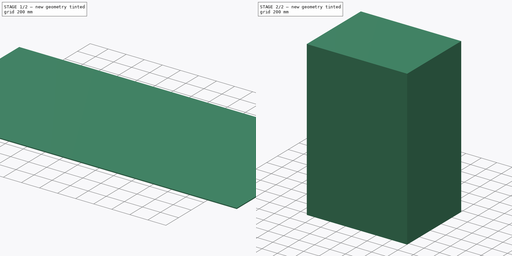
[diagram: build sequence overview — one tinted view per stage of 2, left to right]
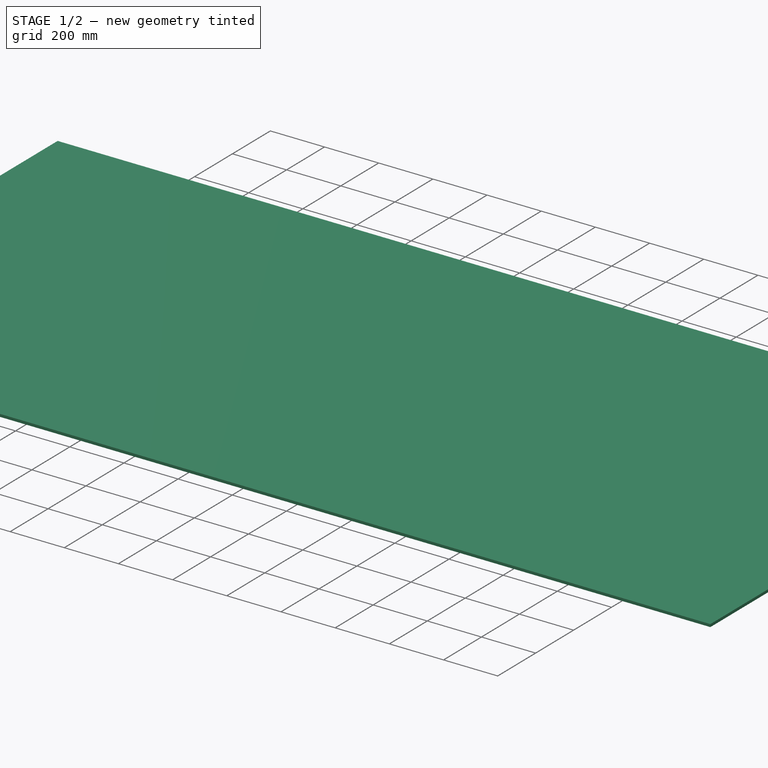
[diagram: stage 1 of 2 — iso view after this stage's code; geometry added in this stage tinted green]
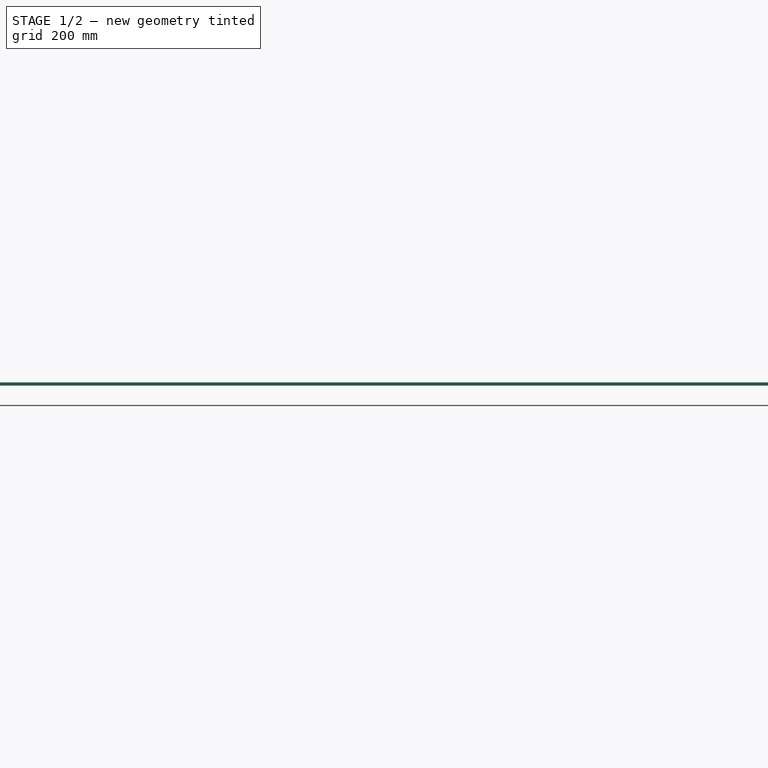
[diagram: stage 1 of 2 — front view after this stage's code; geometry added in this stage tinted green]
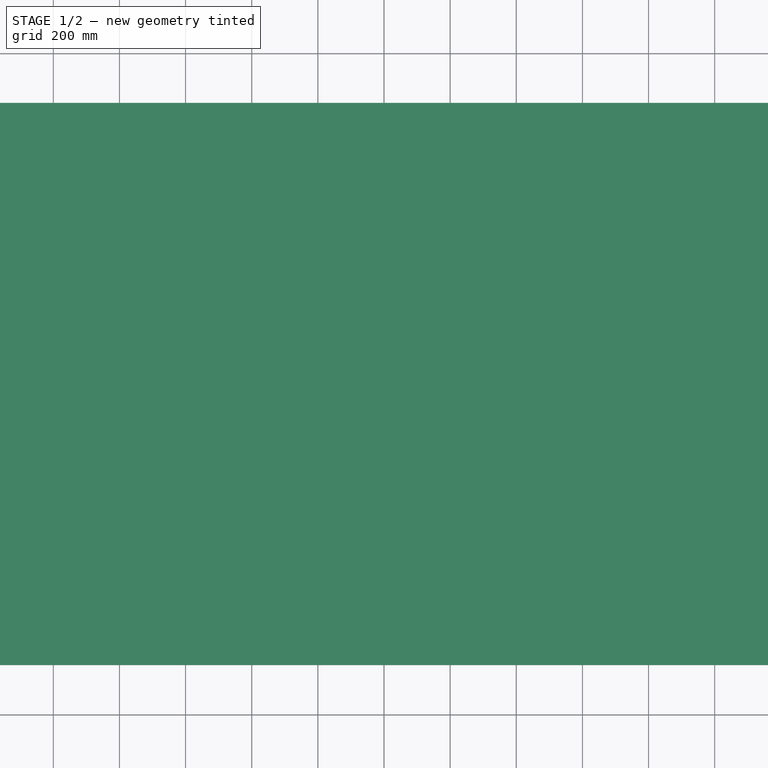
[diagram: stage 1 of 2 — top view after this stage's code; geometry added in this stage tinted green]
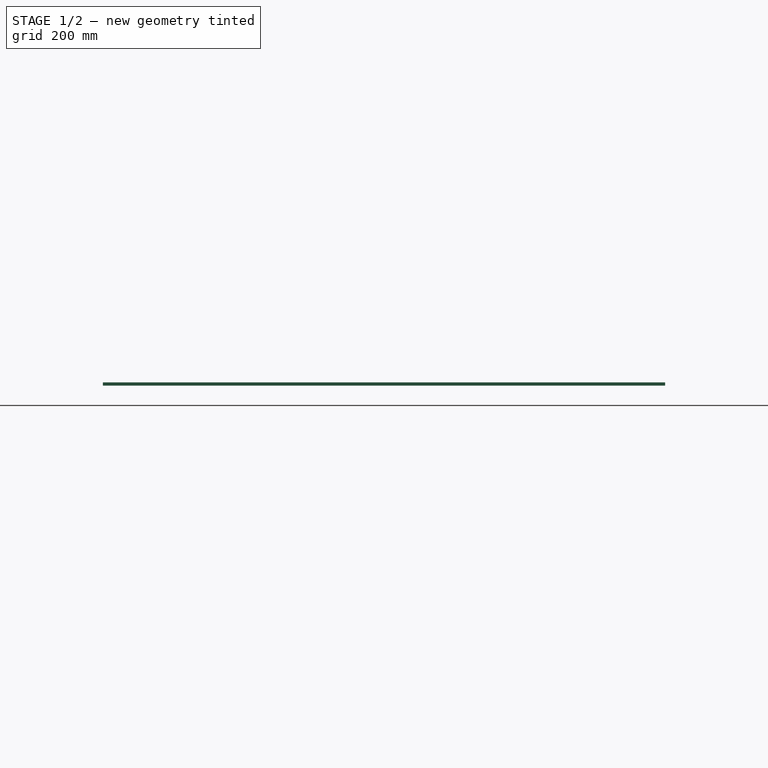
[diagram: stage 1 of 2 — right view after this stage's code; geometry added in this stage tinted green]
FCSTD DOCUMENT  (FreeCAD 0.20R29410 (Git))
Label: FireWhirl_Design1
License: All rights reserved
LicenseURL: http://en.wikipedia.org/wiki/All_rights_reserved
objects: Sketcher::SketchObject×3, Part::Extrusion×3, App::Part×1
note: 6 computed .brp shape members not serialized (recipe doc carries the construction recipe); baked Part::Feature solids carry a one-line shape summary decoded from their .brp

FEATURE [App::Part] Part
  Origin = -> Origin
FEATURE [Sketcher::SketchObject] Sketch
  FullyConstrained = true
  sketch-geometry (7):
    g0: LineSegment StartX=-948.243 StartY=-318.528 StartZ=0 EndX=931.142 EndY=365.512 EndZ=0
    g1: LineSegment StartX=931.142 StartY=365.512 StartZ=0 EndX=948.243 EndY=318.528 EndZ=0
    g2: LineSegment StartX=948.243 StartY=318.528 StartZ=0 EndX=-931.142 EndY=-365.512 EndZ=0
    g3: LineSegment StartX=-931.142 StartY=-365.512 StartZ=0 EndX=-948.243 EndY=-318.528 EndZ=0
    g4: LineSegment StartX=931.142 StartY=365.512 StartZ=0 EndX=-931.142 EndY=-365.512 EndZ=0
    g5: LineSegment StartX=-948.243 StartY=-318.528 StartZ=0 EndX=948.243 EndY=318.528 EndZ=0
    g6: GeomPoint X=0 Y=0 Z=0
  constraints (17):
    c: Coincident(g1,g0)
    c: Coincident(g2,g1)
    c: Coincident(g3,g2)
    c: Coincident(g3,g0)
    c: Parallel(g3,g1)
    c: Parallel(g0,g2)
    c: Angle(g2,g3) = 1.5708
    c: Coincident(g4,g0)
    c: Coincident(g4,g2)
    c: Coincident(g5,g0)
    c: Coincident(g5,g1)
    c: PointOnObject(g6,g4)
    c: PointOnObject(g6,g5)
    c: Coincident(g-1,g6)
    c: Angle(g-1,g0) = 0.349066
    c: Distance(g1) = 50
    c: Distance(g2) = 2000
FEATURE [Part::Extrusion] Extrude
  Base = -> Sketch
  Dir = (0,0,1)
  DirMode = 2
  FaceMakerClass = Part::FaceMakerBullseye
  LengthFwd = 50
  LengthRev = 0
  Solid = true
  Symmetric = false
FEATURE [Sketcher::SketchObject] Sketch001
  FullyConstrained = true
  MapMode = 5
  Placement = pos=(0,0,0) rot=(1,0,0;3.14159rad)
  Support = -> [Extrude]
  sketch-geometry (5):
    g0: LineSegment StartX=1800 StartY=850 StartZ=0 EndX=1800 EndY=-850 EndZ=0
    g1: LineSegment StartX=1800 StartY=-850 StartZ=0 EndX=-1800 EndY=-850 EndZ=0
    g2: LineSegment StartX=-1800 StartY=-850 StartZ=0 EndX=-1800 EndY=850 EndZ=0
    g3: LineSegment StartX=-1800 StartY=850 StartZ=0 EndX=1800 EndY=850 EndZ=0
    g4: GeomPoint X=0 Y=0 Z=0
  constraints (12):
    c: Coincident(g0,g1)
    c: Coincident(g1,g2)
    c: Coincident(g2,g3)
    c: Coincident(g3,g0)
    c: Horizontal(g1)
    c: Horizontal(g3)
    c: Vertical(g0)
    c: Vertical(g2)
    c: Symmetric(g1,g0,g4)
    c: Coincident(g-1,g4)
    c: DistanceX(g3,g3) = 3600
    c: DistanceY(g2,g2) = 1700
FEATURE [Part::Extrusion] Extrude001
  Base = -> Sketch001
  Dir = (0,0,-1)
  DirMode = 2
  FaceMakerClass = Part::FaceMakerBullseye
  LengthFwd = 10
  LengthRev = 0
  Solid = true
  Symmetric = false
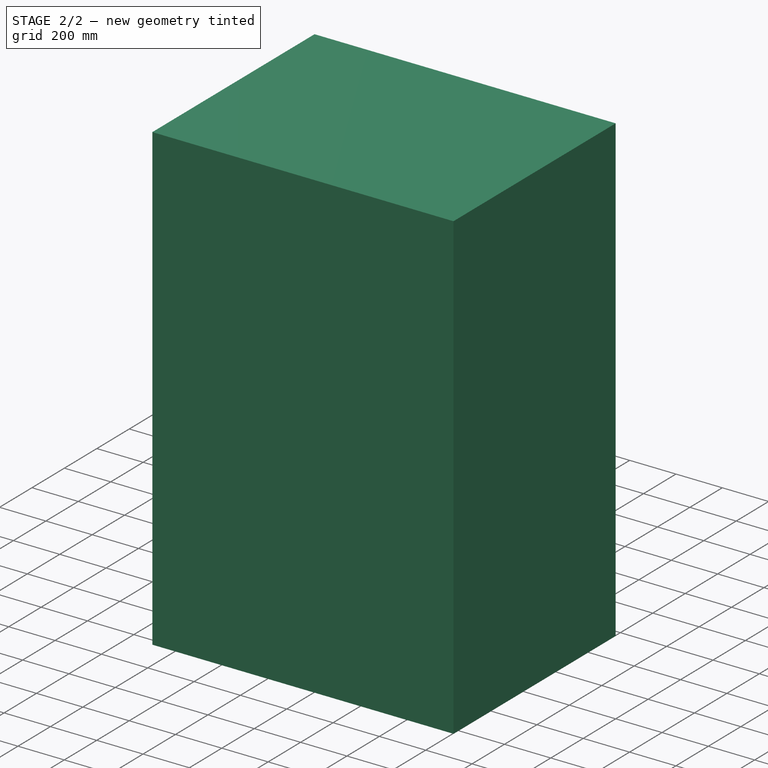
[diagram: stage 2 of 2 — iso view after this stage's code; geometry added in this stage tinted green]
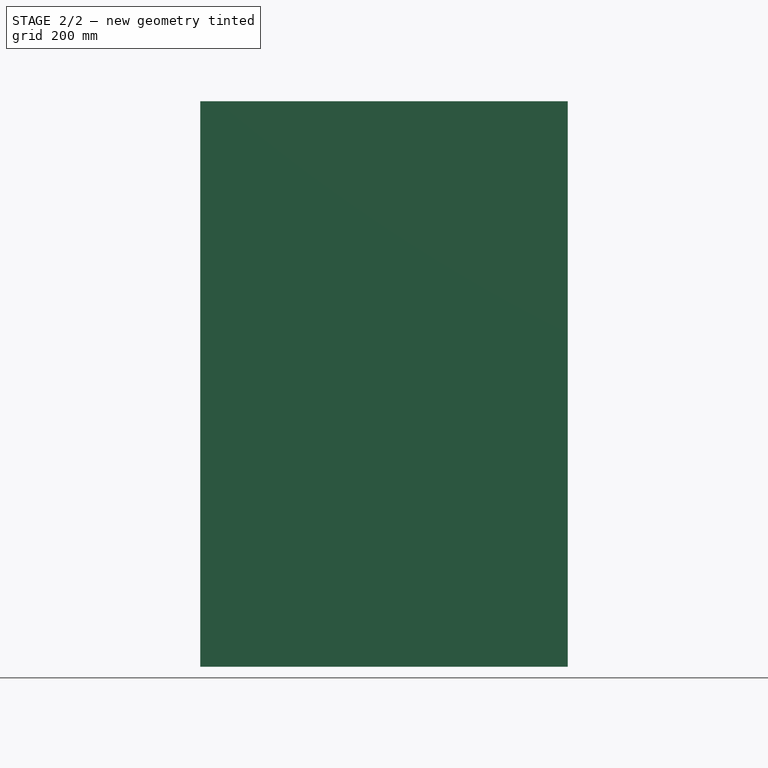
[diagram: stage 2 of 2 — front view after this stage's code; geometry added in this stage tinted green]
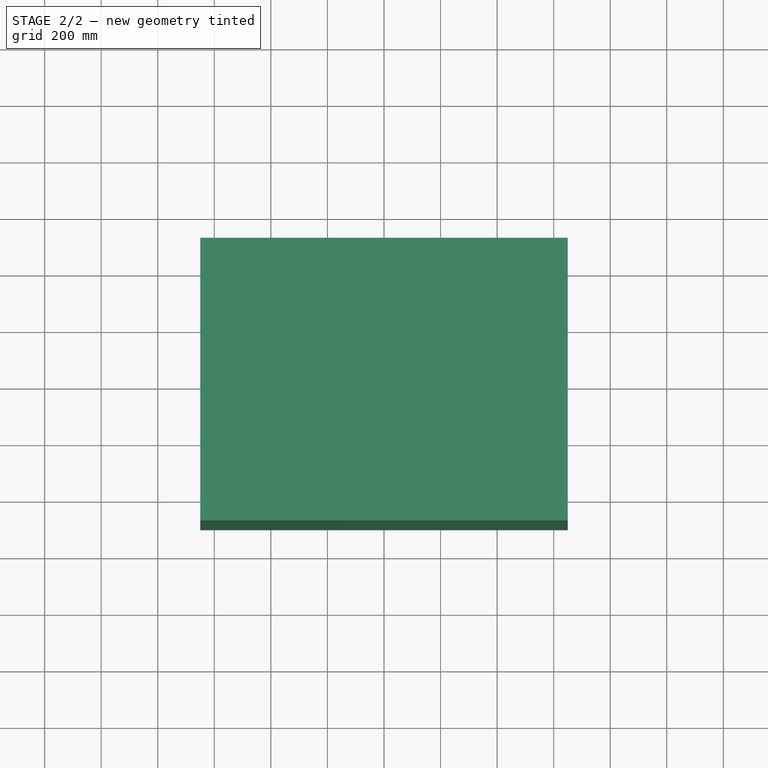
[diagram: stage 2 of 2 — top view after this stage's code; geometry added in this stage tinted green]
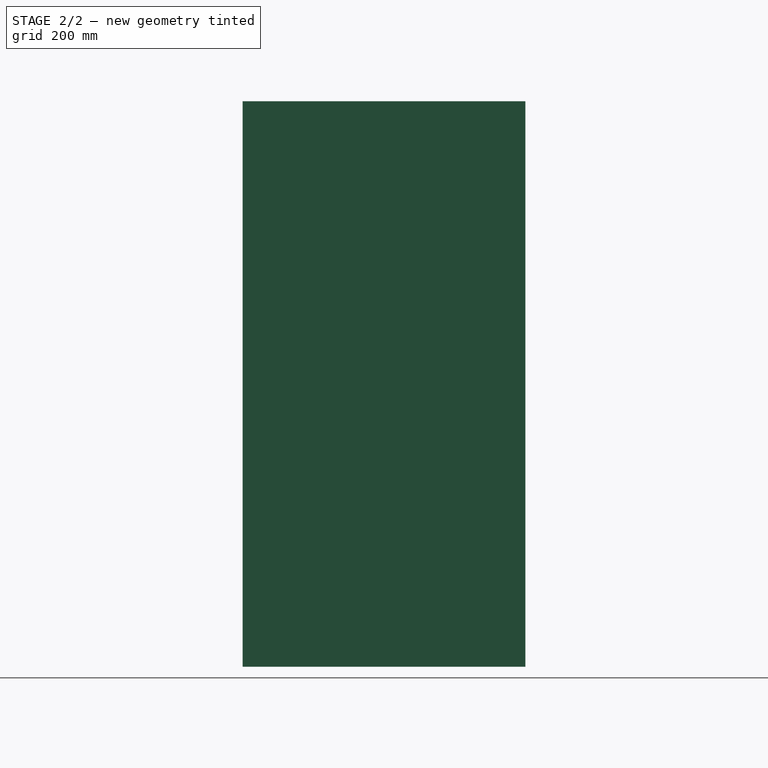
[diagram: stage 2 of 2 — right view after this stage's code; geometry added in this stage tinted green]
FEATURE [Sketcher::SketchObject] Sketch002
  FullyConstrained = true
  MapMode = 5
  Support = -> [Extrude001]
  sketch-geometry (5):
    g0: LineSegment StartX=5650 StartY=500 StartZ=0 EndX=5650 EndY=-500 EndZ=0
    g1: LineSegment StartX=5650 StartY=-500 StartZ=0 EndX=4350 EndY=-500 EndZ=0
    g2: LineSegment StartX=4350 StartY=-500 StartZ=0 EndX=4350 EndY=500 EndZ=0
    g3: LineSegment StartX=4350 StartY=500 StartZ=0 EndX=5650 EndY=500 EndZ=0
    g4: GeomPoint X=5000 Y=0 Z=0
  constraints (13):
    c: PointOnObject(g4,g-1)
    c: Coincident(g0,g1)
    c: Coincident(g1,g2)
    c: Coincident(g2,g3)
    c: Coincident(g3,g0)
    c: Horizontal(g1)
    c: Horizontal(g3)
    c: Vertical(g0)
    c: Vertical(g2)
    c: Symmetric(g1,g0,g4)
    c: DistanceY(g0,g0) = 1000
    c: DistanceX(g1,g1) = 1300
    c: DistanceX(g-1,g4) = 5000
FEATURE [Part::Extrusion] Extrude002
  Base = -> Sketch002
  Dir = (0,0,1)
  DirMode = 2
  FaceMakerClass = Part::FaceMakerBullseye
  LengthFwd = 2000
  LengthRev = 0
  Solid = true
  Symmetric = false
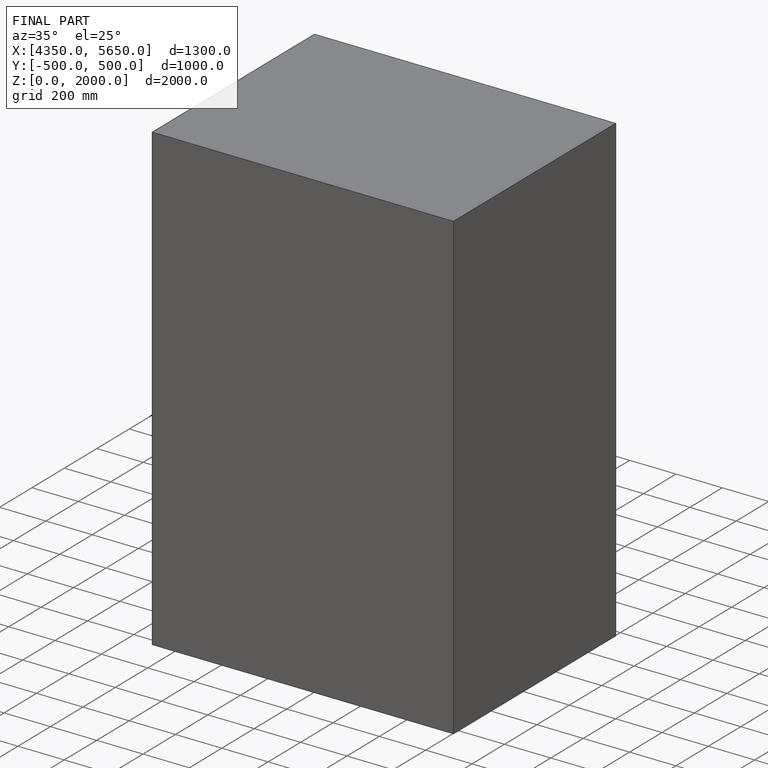
[diagram: finished part — iso view with bounding-box wireframe]
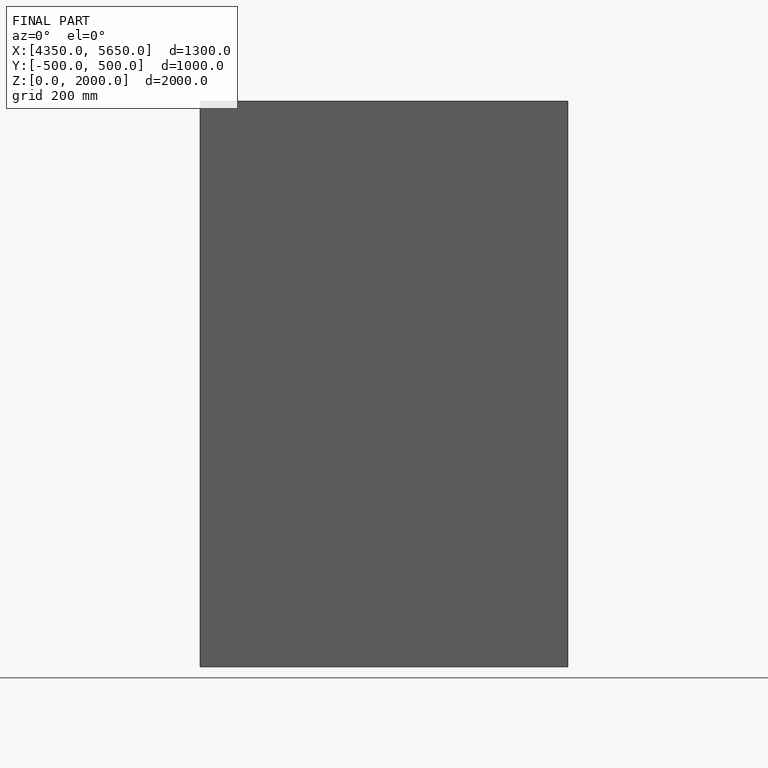
[diagram: finished part — front view with bounding-box wireframe]
